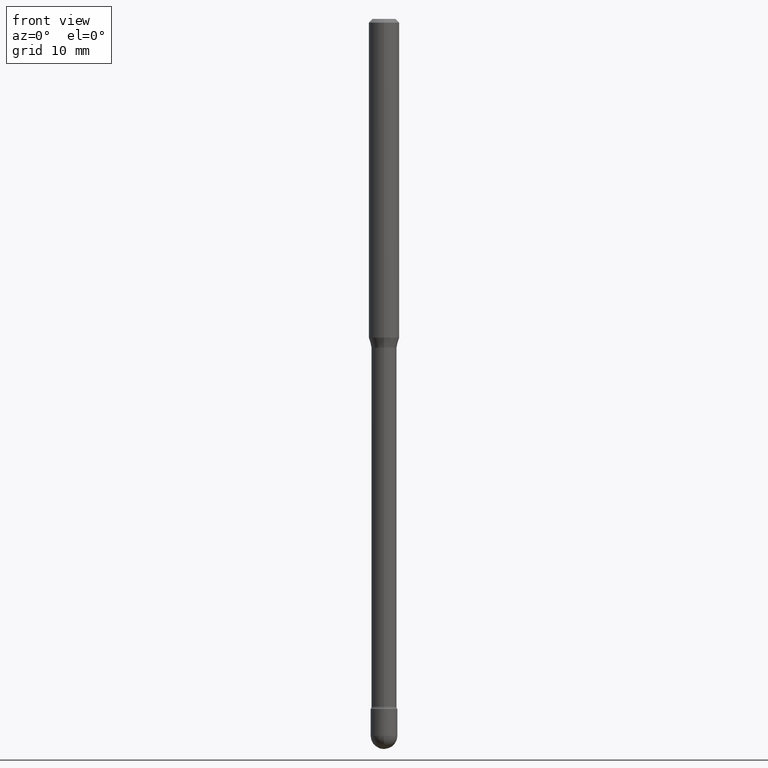
[diagram: clean part render]
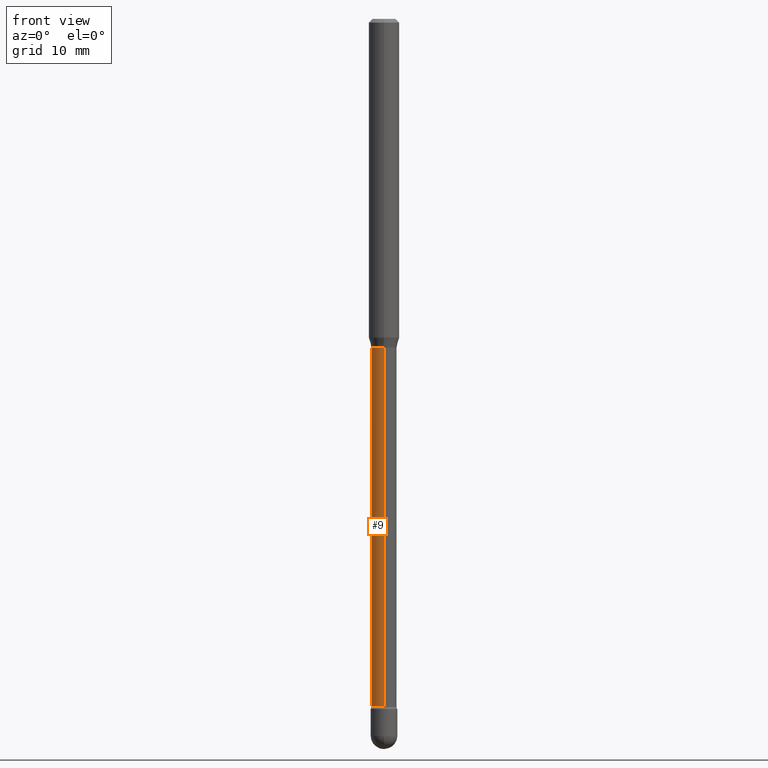
[diagram: same view with one face highlighted and labeled with its STEP entity id]
A machine part, front view. The second image highlights one B-rep face of the part: STEP entity #9.
In plain terms, the highlighted cylindrical surface (edge-blend (fillet) strip) has radius 1.3132 mm, axis along (-0, 0, 1).
Its self-contained STEP definition (entity closure, byte-faithful):
#9 = ADVANCED_FACE ( 'NONE', ( #438 ), #452, .T. ) ;
#10 = CARTESIAN_POINT ( 'NONE',  ( 6.909864735020778379E-29, -9.865697093748834148E-15, -2.825613307291703347 ) ) ;
#20 = ORIENTED_EDGE ( 'NONE', *, *, #166, .F. ) ;
#33 = VECTOR ( 'NONE', #421, 39.37007874015748143 ) ;
#46 = DIRECTION ( 'NONE',  ( -2.445438913098746868E-29, 3.491524147444264637E-15, 1.000000000000000000 ) ) ;
#62 = CARTESIAN_POINT ( 'NONE',  ( -1.169113584055446105E-44, 1.669184350826100908E-30, 4.780733988912460139E-16 ) ) ;
#65 = DIRECTION ( 'NONE',  ( -6.982962677686265922E-15, -1.000000000000000000, 3.491524147444265031E-15 ) ) ;
#90 = CARTESIAN_POINT ( 'NONE',  ( -3.610191704363808417E-16, -0.05170000000000012780, 6.585851973141149814E-16 ) ) ;
#148 = CARTESIAN_POINT ( 'NONE',  ( 3.673505943880415323E-16, 0.05169999999999527751, -1.351974787463811722 ) ) ;
#152 = DIRECTION ( 'NONE',  ( -6.982962677686266711E-15, -1.000000000000000000, 5.284038672464726492E-15 ) ) ;
#166 = EDGE_CURVE ( 'NONE', #280, #307, #523, .T. ) ;
#202 = ORIENTED_EDGE ( 'NONE', *, *, #472, .T. ) ;
#211 = CIRCLE ( 'NONE', #287, 0.05170000000000024576 ) ;
#234 = EDGE_CURVE ( 'NONE', #386, #280, #459, .T. ) ;
#272 = DIRECTION ( 'NONE',  ( -6.982962677686265922E-15, -1.000000000000000000, 0.000000000000000000 ) ) ;
#280 = VERTEX_POINT ( 'NONE', #148 ) ;
#287 = AXIS2_PLACEMENT_3D ( 'NONE', #10, #413, #272 ) ;
#292 = VECTOR ( 'NONE', #46, 39.37007874015748143 ) ;
#303 = CARTESIAN_POINT ( 'NONE',  ( -3.610191704363469207E-16, -0.05170000000000472135, -1.351974787463811056 ) ) ;
#307 = VERTEX_POINT ( 'NONE', #303 ) ;
#325 = DIRECTION ( 'NONE',  ( -2.445438913098746868E-29, 3.491524147444264637E-15, 1.000000000000000000 ) ) ;
#334 = EDGE_CURVE ( 'NONE', #533, #307, #340, .T. ) ;
#338 = CARTESIAN_POINT ( 'NONE',  ( -3.610191704363126052E-16, -0.05170000000001011287, -2.825613307291703347 ) ) ;
#340 = LINE ( 'NONE', #90, #292 ) ;
#386 = VERTEX_POINT ( 'NONE', #434 ) ;
#391 = ORIENTED_EDGE ( 'NONE', *, *, #334, .T. ) ;
#397 = ORIENTED_EDGE ( 'NONE', *, *, #234, .F. ) ;
#413 = DIRECTION ( 'NONE',  ( -2.445438913098746868E-29, 3.491524147444264637E-15, 1.000000000000000000 ) ) ;
#421 = DIRECTION ( 'NONE',  ( -2.445438913098746868E-29, 3.491524147444264637E-15, 1.000000000000000000 ) ) ;
#434 = CARTESIAN_POINT ( 'NONE',  ( 3.790745495280832746E-16, 0.05169999999999037865, -2.825613307291703347 ) ) ;
#438 = FACE_OUTER_BOUND ( 'NONE', #476, .T. ) ;
#452 = CYLINDRICAL_SURFACE ( 'NONE', #539, 0.05170000000000012780 ) ;
#459 = LINE ( 'NONE', #541, #33 ) ;
#472 = EDGE_CURVE ( 'NONE', #386, #533, #211, .T. ) ;
#476 = EDGE_LOOP ( 'NONE', ( #397, #202, #391, #20 ) ) ;
#501 = AXIS2_PLACEMENT_3D ( 'NONE', #513, #546, #152 ) ;
#513 = CARTESIAN_POINT ( 'NONE',  ( 3.306171754792412151E-29, -4.720452617165725259E-15, -1.351974787463811278 ) ) ;
#523 = CIRCLE ( 'NONE', #501, 0.05169999999999999596 ) ;
#533 = VERTEX_POINT ( 'NONE', #338 ) ;
#539 = AXIS2_PLACEMENT_3D ( 'NONE', #62, #325, #65 ) ;
#541 = CARTESIAN_POINT ( 'NONE',  ( 3.673505943879726548E-16, 0.05170000000000012780, 2.975616004683770958E-16 ) ) ;
#546 = DIRECTION ( 'NONE',  ( -2.445438913098746868E-29, 3.491524147444264637E-15, 1.000000000000000000 ) ) ;